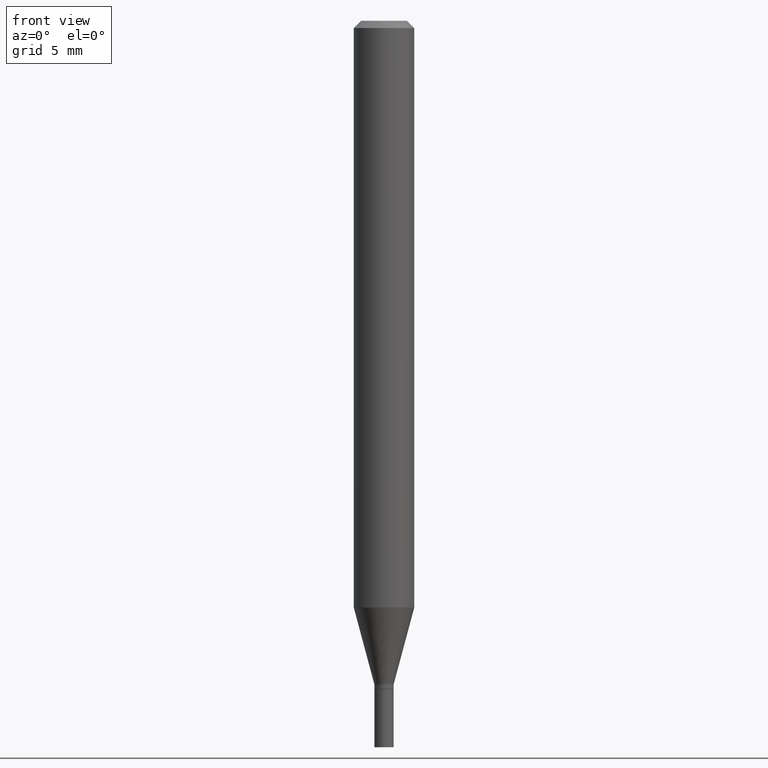
[diagram: clean part render]
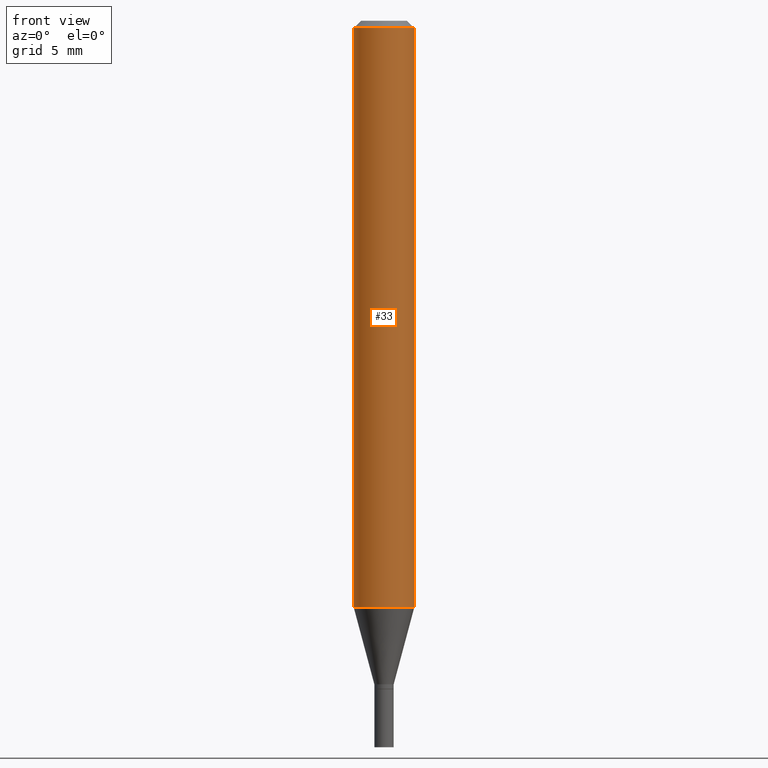
[diagram: same view with one face highlighted and labeled with its STEP entity id]
A machine part, front view. The second image highlights one B-rep face of the part: STEP entity #33.
In plain terms, the highlighted cylindrical surface (edge-blend (fillet) strip) has radius 1.5875 mm, axis along (-0, 0, 1).
Its self-contained STEP definition (entity closure, byte-faithful):
#1 = EDGE_CURVE ( 'NONE', #146, #419, #35, .T. ) ;
#12 = DIRECTION ( 'NONE',  ( -2.445468806185136597E-29, 3.491481338843145583E-15, 1.000000000000000000 ) ) ;
#25 = AXIS2_PLACEMENT_3D ( 'NONE', #37, #397, #103 ) ;
#33 = ADVANCED_FACE ( 'NONE', ( #207 ), #175, .T. ) ;
#35 = CIRCLE ( 'NONE', #25, 0.06250000000000000000 ) ;
#37 = CARTESIAN_POINT ( 'NONE',  ( 2.962411176570807976E-29, -4.229538039829856953E-15, -1.211387840678322503 ) ) ;
#39 = DIRECTION ( 'NONE',  ( -2.445468806185136597E-29, 3.491481338843145583E-15, 1.000000000000000000 ) ) ;
#52 = CARTESIAN_POINT ( 'NONE',  ( -0.06250000000000000000, -1.696865920106189400E-15, -0.01499999999999999944 ) ) ;
#67 = EDGE_CURVE ( 'NONE', #146, #196, #141, .T. ) ;
#87 = ORIENTED_EDGE ( 'NONE', *, *, #147, .F. ) ;
#103 = DIRECTION ( 'NONE',  ( 1.000000000000000000, -6.982962677686270655E-15, 0.000000000000000000 ) ) ;
#111 = VECTOR ( 'NONE', #183, 39.37007874015748143 ) ;
#121 = AXIS2_PLACEMENT_3D ( 'NONE', #291, #39, #396 ) ;
#139 = AXIS2_PLACEMENT_3D ( 'NONE', #221, #12, #304 ) ;
#141 = LINE ( 'NONE', #297, #111 ) ;
#146 = VERTEX_POINT ( 'NONE', #189 ) ;
#147 = EDGE_CURVE ( 'NONE', #196, #252, #405, .T. ) ;
#175 = CYLINDRICAL_SURFACE ( 'NONE', #121, 0.06250000000000000000 ) ;
#183 = DIRECTION ( 'NONE',  ( -2.445468806185136877E-29, 3.491481338843145188E-15, 1.000000000000000000 ) ) ;
#189 = CARTESIAN_POINT ( 'NONE',  ( -0.06250000000000000000, -3.785448829979794337E-15, -1.211387840678322503 ) ) ;
#196 = VERTEX_POINT ( 'NONE', #52 ) ;
#207 = FACE_OUTER_BOUND ( 'NONE', #416, .T. ) ;
#208 = ORIENTED_EDGE ( 'NONE', *, *, #446, .T. ) ;
#221 = CARTESIAN_POINT ( 'NONE',  ( 3.668203209277705088E-31, -5.237222008264718399E-17, -0.01499999999999999944 ) ) ;
#242 = LINE ( 'NONE', #317, #322 ) ;
#252 = VERTEX_POINT ( 'NONE', #280 ) ;
#280 = CARTESIAN_POINT ( 'NONE',  ( 0.06250000000000000000, -4.888073874380388472E-16, -0.01499999999999999944 ) ) ;
#291 = CARTESIAN_POINT ( 'NONE',  ( 0.000000000000000000, 0.000000000000000000, 0.000000000000000000 ) ) ;
#292 = ORIENTED_EDGE ( 'NONE', *, *, #67, .F. ) ;
#297 = CARTESIAN_POINT ( 'NONE',  ( -0.06250000000000000000, 4.440892098500626162E-16, -3.074334431409316114E-30 ) ) ;
#304 = DIRECTION ( 'NONE',  ( 1.000000000000000000, -6.982962677686266711E-15, 0.000000000000000000 ) ) ;
#317 = CARTESIAN_POINT ( 'NONE',  ( 0.06250000000000000000, -4.364351673553916694E-16, 3.047610484872459871E-30 ) ) ;
#322 = VECTOR ( 'NONE', #458, 39.37007874015748143 ) ;
#341 = ORIENTED_EDGE ( 'NONE', *, *, #1, .T. ) ;
#393 = CARTESIAN_POINT ( 'NONE',  ( 0.06250000000000000000, -4.665973207185248623E-15, -1.211387840678322503 ) ) ;
#396 = DIRECTION ( 'NONE',  ( 1.000000000000000000, -6.982962677686266711E-15, 4.876176775795935793E-29 ) ) ;
#397 = DIRECTION ( 'NONE',  ( -2.445468806185136597E-29, 3.491481338843145583E-15, 1.000000000000000000 ) ) ;
#405 = CIRCLE ( 'NONE', #139, 0.06250000000000000000 ) ;
#416 = EDGE_LOOP ( 'NONE', ( #292, #341, #208, #87 ) ) ;
#419 = VERTEX_POINT ( 'NONE', #393 ) ;
#446 = EDGE_CURVE ( 'NONE', #419, #252, #242, .T. ) ;
#458 = DIRECTION ( 'NONE',  ( -2.445468806185136877E-29, 3.491481338843145188E-15, 1.000000000000000000 ) ) ;